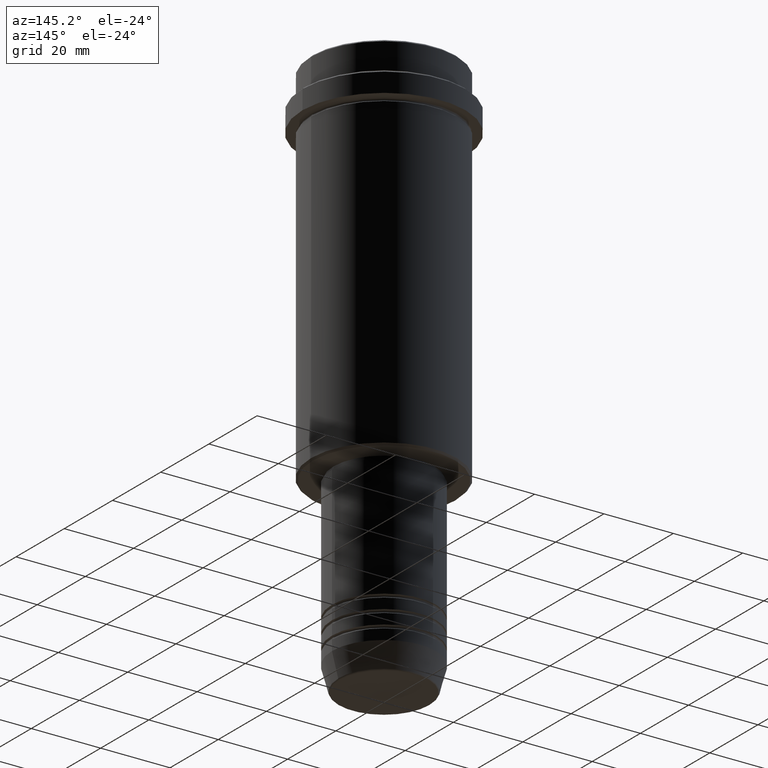
[diagram: clean part render]
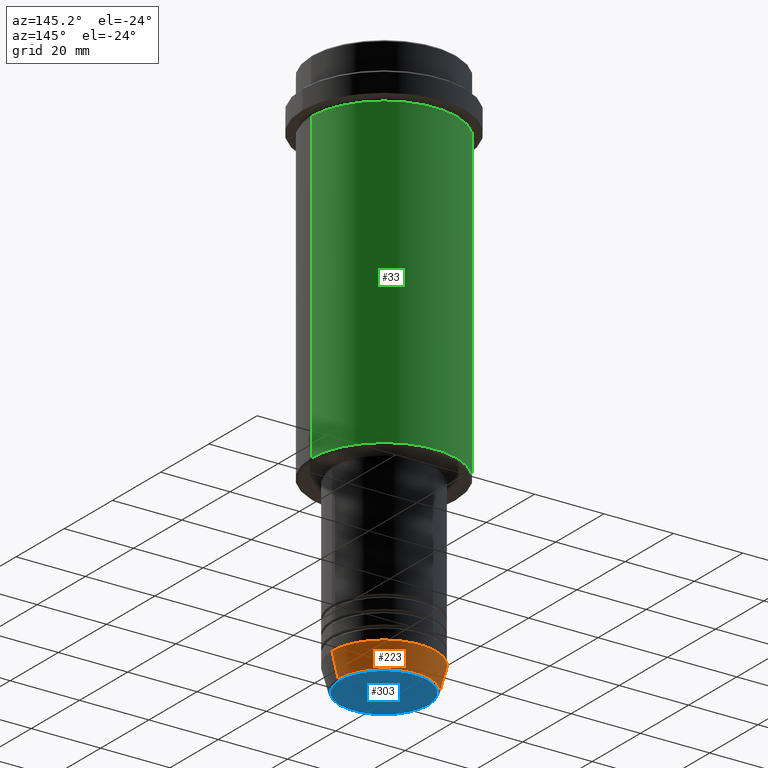
[diagram: same view with three faces highlighted in distinct colors, each labeled with its STEP entity id]
A machine part, auxiliary view with three faces highlighted in distinct colors.
Their STEP definitions:

[orange] entity #223 — the highlighted conical surface has half-angle 15 deg.
#3 = EDGE_LOOP ( 'NONE', ( #888, #423, #574, #597 ) ) ;
#97 = DIRECTION ( 'NONE',  ( 1.000000000000000000, 0.000000000000000000, 0.000000000000000000 ) ) ;
#116 = VERTEX_POINT ( 'NONE', #1038 ) ;
#170 = EDGE_CURVE ( 'NONE', #609, #1400, #872, .T. ) ;
#183 = DIRECTION ( 'NONE',  ( -0.000000000000000000, -0.000000000000000000, 1.000000000000000000 ) ) ;
#186 = CARTESIAN_POINT ( 'NONE',  ( -15.00000000000000000, 1.836970198721029589E-15, -153.0000000000000000 ) ) ;
#198 = VERTEX_POINT ( 'NONE', #1091 ) ;
#223 = ADVANCED_FACE ( 'NONE', ( #643 ), #980, .T. ) ;
#233 = DIRECTION ( 'NONE',  ( 1.000000000000000000, 0.000000000000000000, 0.000000000000000000 ) ) ;
#301 = DIRECTION ( 'NONE',  ( 0.2588190451025213501, 0.000000000000000000, 0.9659258262890680902 ) ) ;
#304 = CARTESIAN_POINT ( 'NONE',  ( -15.00000000000000000, 1.836970198721029589E-15, -153.0000000000000000 ) ) ;
#344 = CARTESIAN_POINT ( 'NONE',  ( 0.000000000000000000, 0.000000000000000000, -159.6294095225512422 ) ) ;
#423 = ORIENTED_EDGE ( 'NONE', *, *, #170, .T. ) ;
#498 = CIRCLE ( 'NONE', #782, 15.00000000000000000 ) ;
#518 = VECTOR ( 'NONE', #664, 1000.000000000000000 ) ;
#574 = ORIENTED_EDGE ( 'NONE', *, *, #613, .F. ) ;
#597 = ORIENTED_EDGE ( 'NONE', *, *, #691, .F. ) ;
#609 = VERTEX_POINT ( 'NONE', #958 ) ;
#613 = EDGE_CURVE ( 'NONE', #116, #1400, #498, .T. ) ;
#643 = FACE_OUTER_BOUND ( 'NONE', #3, .T. ) ;
#664 = DIRECTION ( 'NONE',  ( -0.2588190451025213501, 3.169619151431772337E-17, 0.9659258262890680902 ) ) ;
#670 = AXIS2_PLACEMENT_3D ( 'NONE', #344, #1222, #233 ) ;
#691 = EDGE_CURVE ( 'NONE', #198, #116, #749, .T. ) ;
#749 = LINE ( 'NONE', #1163, #849 ) ;
#782 = AXIS2_PLACEMENT_3D ( 'NONE', #1184, #183, #97 ) ;
#849 = VECTOR ( 'NONE', #301, 1000.000000000000000 ) ;
#863 = EDGE_CURVE ( 'NONE', #198, #609, #1277, .T. ) ;
#864 = CARTESIAN_POINT ( 'NONE',  ( 0.000000000000000000, 0.000000000000000000, -153.0000000000000000 ) ) ;
#872 = LINE ( 'NONE', #304, #518 ) ;
#888 = ORIENTED_EDGE ( 'NONE', *, *, #863, .T. ) ;
#958 = CARTESIAN_POINT ( 'NONE',  ( -13.22365507213718772, 1.728200442216588189E-15, -159.6294095225512422 ) ) ;
#980 = CONICAL_SURFACE ( 'NONE', #1157, 15.00000000000000000, 0.2617993877991500740 ) ;
#1038 = CARTESIAN_POINT ( 'NONE',  ( 15.00000000000000000, 0.000000000000000000, -153.0000000000000000 ) ) ;
#1091 = CARTESIAN_POINT ( 'NONE',  ( 13.22365507213718772, 0.000000000000000000, -159.6294095225512422 ) ) ;
#1157 = AXIS2_PLACEMENT_3D ( 'NONE', #864, #1171, #1310 ) ;
#1163 = CARTESIAN_POINT ( 'NONE',  ( 15.00000000000000000, 0.000000000000000000, -153.0000000000000000 ) ) ;
#1171 = DIRECTION ( 'NONE',  ( -0.000000000000000000, -0.000000000000000000, 1.000000000000000000 ) ) ;
#1184 = CARTESIAN_POINT ( 'NONE',  ( 0.000000000000000000, 0.000000000000000000, -153.0000000000000000 ) ) ;
#1222 = DIRECTION ( 'NONE',  ( -0.000000000000000000, -0.000000000000000000, 1.000000000000000000 ) ) ;
#1277 = CIRCLE ( 'NONE', #670, 13.22365507213718772 ) ;
#1310 = DIRECTION ( 'NONE',  ( 1.000000000000000000, 0.000000000000000000, 0.000000000000000000 ) ) ;
#1400 = VERTEX_POINT ( 'NONE', #186 ) ;

[blue] entity #303 — the highlighted planar face has unit normal (0, -0, 1).
#12 = EDGE_CURVE ( 'NONE', #891, #83, #421, .T. ) ;
#20 = ORIENTED_EDGE ( 'NONE', *, *, #630, .T. ) ;
#83 = VERTEX_POINT ( 'NONE', #386 ) ;
#245 = DIRECTION ( 'NONE',  ( 1.000000000000000000, 0.000000000000000000, 0.000000000000000000 ) ) ;
#249 = CARTESIAN_POINT ( 'NONE',  ( -12.74069215899265828, 1.589857736427681035E-15, -160.0000000000000000 ) ) ;
#292 = CIRCLE ( 'NONE', #427, 12.74069215899265828 ) ;
#303 = ADVANCED_FACE ( 'NONE', ( #802 ), #587, .F. ) ;
#326 = EDGE_LOOP ( 'NONE', ( #20, #994 ) ) ;
#386 = CARTESIAN_POINT ( 'NONE',  ( 12.74069215899265828, 0.000000000000000000, -160.0000000000000000 ) ) ;
#421 = CIRCLE ( 'NONE', #1365, 12.74069215899265828 ) ;
#427 = AXIS2_PLACEMENT_3D ( 'NONE', #513, #969, #848 ) ;
#513 = CARTESIAN_POINT ( 'NONE',  ( 0.000000000000000000, 0.000000000000000000, -160.0000000000000000 ) ) ;
#587 = PLANE ( 'NONE',  #1070 ) ;
#630 = EDGE_CURVE ( 'NONE', #83, #891, #292, .T. ) ;
#705 = DIRECTION ( 'NONE',  ( 1.000000000000000000, 0.000000000000000000, 0.000000000000000000 ) ) ;
#802 = FACE_OUTER_BOUND ( 'NONE', #326, .T. ) ;
#848 = DIRECTION ( 'NONE',  ( 1.000000000000000000, 0.000000000000000000, 0.000000000000000000 ) ) ;
#891 = VERTEX_POINT ( 'NONE', #249 ) ;
#951 = CARTESIAN_POINT ( 'NONE',  ( 0.000000000000000000, 0.000000000000000000, -160.0000000000000000 ) ) ;
#969 = DIRECTION ( 'NONE',  ( 0.000000000000000000, 0.000000000000000000, -1.000000000000000000 ) ) ;
#994 = ORIENTED_EDGE ( 'NONE', *, *, #12, .T. ) ;
#1070 = AXIS2_PLACEMENT_3D ( 'NONE', #1102, #1233, #245 ) ;
#1102 = CARTESIAN_POINT ( 'NONE',  ( 0.000000000000000000, 0.000000000000000000, -160.0000000000000000 ) ) ;
#1149 = DIRECTION ( 'NONE',  ( 0.000000000000000000, 0.000000000000000000, -1.000000000000000000 ) ) ;
#1233 = DIRECTION ( 'NONE',  ( 0.000000000000000000, -0.000000000000000000, 1.000000000000000000 ) ) ;
#1365 = AXIS2_PLACEMENT_3D ( 'NONE', #951, #1149, #705 ) ;

[green] entity #33 — the highlighted cylindrical surface (partial cylindrical patch) has radius 21 mm, axis along (-0, -0, 1).
#14 = VERTEX_POINT ( 'NONE', #727 ) ;
#28 = VERTEX_POINT ( 'NONE', #1058 ) ;
#33 = ADVANCED_FACE ( 'NONE', ( #1273 ), #67, .T. ) ;
#46 = CARTESIAN_POINT ( 'NONE',  ( 21.00000000000000000, 0.000000000000000000, -104.4999999999999858 ) ) ;
#55 = CIRCLE ( 'NONE', #1406, 21.00000000000000000 ) ;
#58 = DIRECTION ( 'NONE',  ( 1.000000000000000000, 0.000000000000000000, 0.000000000000000000 ) ) ;
#61 = VERTEX_POINT ( 'NONE', #46 ) ;
#67 = CYLINDRICAL_SURFACE ( 'NONE', #1135, 21.00000000000000000 ) ;
#68 = CARTESIAN_POINT ( 'NONE',  ( -21.00000000000000000, 2.571758278209441661E-15, 0.000000000000000000 ) ) ;
#70 = ORIENTED_EDGE ( 'NONE', *, *, #1339, .T. ) ;
#213 = CARTESIAN_POINT ( 'NONE',  ( 0.000000000000000000, 0.000000000000000000, -16.00000000000000355 ) ) ;
#214 = EDGE_CURVE ( 'NONE', #61, #14, #55, .T. ) ;
#215 = CARTESIAN_POINT ( 'NONE',  ( 0.000000000000000000, 0.000000000000000000, -104.4999999999999858 ) ) ;
#229 = EDGE_LOOP ( 'NONE', ( #645, #70, #486, #1230 ) ) ;
#272 = LINE ( 'NONE', #68, #1129 ) ;
#359 = AXIS2_PLACEMENT_3D ( 'NONE', #213, #1120, #1341 ) ;
#399 = DIRECTION ( 'NONE',  ( -0.000000000000000000, -0.000000000000000000, 1.000000000000000000 ) ) ;
#486 = ORIENTED_EDGE ( 'NONE', *, *, #764, .F. ) ;
#593 = EDGE_CURVE ( 'NONE', #61, #28, #714, .T. ) ;
#611 = CARTESIAN_POINT ( 'NONE',  ( 0.000000000000000000, 0.000000000000000000, 0.000000000000000000 ) ) ;
#645 = ORIENTED_EDGE ( 'NONE', *, *, #214, .T. ) ;
#714 = LINE ( 'NONE', #1169, #1407 ) ;
#727 = CARTESIAN_POINT ( 'NONE',  ( -21.00000000000000000, 2.571758278209441661E-15, -104.4999999999999858 ) ) ;
#743 = DIRECTION ( 'NONE',  ( -0.000000000000000000, -0.000000000000000000, 1.000000000000000000 ) ) ;
#764 = EDGE_CURVE ( 'NONE', #28, #1337, #985, .T. ) ;
#985 = CIRCLE ( 'NONE', #359, 21.00000000000000000 ) ;
#1058 = CARTESIAN_POINT ( 'NONE',  ( 21.00000000000000000, 0.000000000000000000, -16.00000000000000355 ) ) ;
#1120 = DIRECTION ( 'NONE',  ( -0.000000000000000000, -0.000000000000000000, 1.000000000000000000 ) ) ;
#1129 = VECTOR ( 'NONE', #399, 1000.000000000000000 ) ;
#1135 = AXIS2_PLACEMENT_3D ( 'NONE', #611, #1360, #58 ) ;
#1169 = CARTESIAN_POINT ( 'NONE',  ( 21.00000000000000000, 0.000000000000000000, 0.000000000000000000 ) ) ;
#1186 = DIRECTION ( 'NONE',  ( -1.000000000000000000, 0.000000000000000000, 0.000000000000000000 ) ) ;
#1230 = ORIENTED_EDGE ( 'NONE', *, *, #593, .F. ) ;
#1273 = FACE_OUTER_BOUND ( 'NONE', #229, .T. ) ;
#1283 = CARTESIAN_POINT ( 'NONE',  ( -21.00000000000000000, 2.571758278209441661E-15, -16.00000000000000355 ) ) ;
#1337 = VERTEX_POINT ( 'NONE', #1283 ) ;
#1339 = EDGE_CURVE ( 'NONE', #14, #1337, #272, .T. ) ;
#1341 = DIRECTION ( 'NONE',  ( 1.000000000000000000, 0.000000000000000000, 0.000000000000000000 ) ) ;
#1360 = DIRECTION ( 'NONE',  ( -0.000000000000000000, -0.000000000000000000, 1.000000000000000000 ) ) ;
#1402 = DIRECTION ( 'NONE',  ( -0.000000000000000000, -0.000000000000000000, 1.000000000000000000 ) ) ;
#1406 = AXIS2_PLACEMENT_3D ( 'NONE', #215, #743, #1186 ) ;
#1407 = VECTOR ( 'NONE', #1402, 1000.000000000000000 ) ;